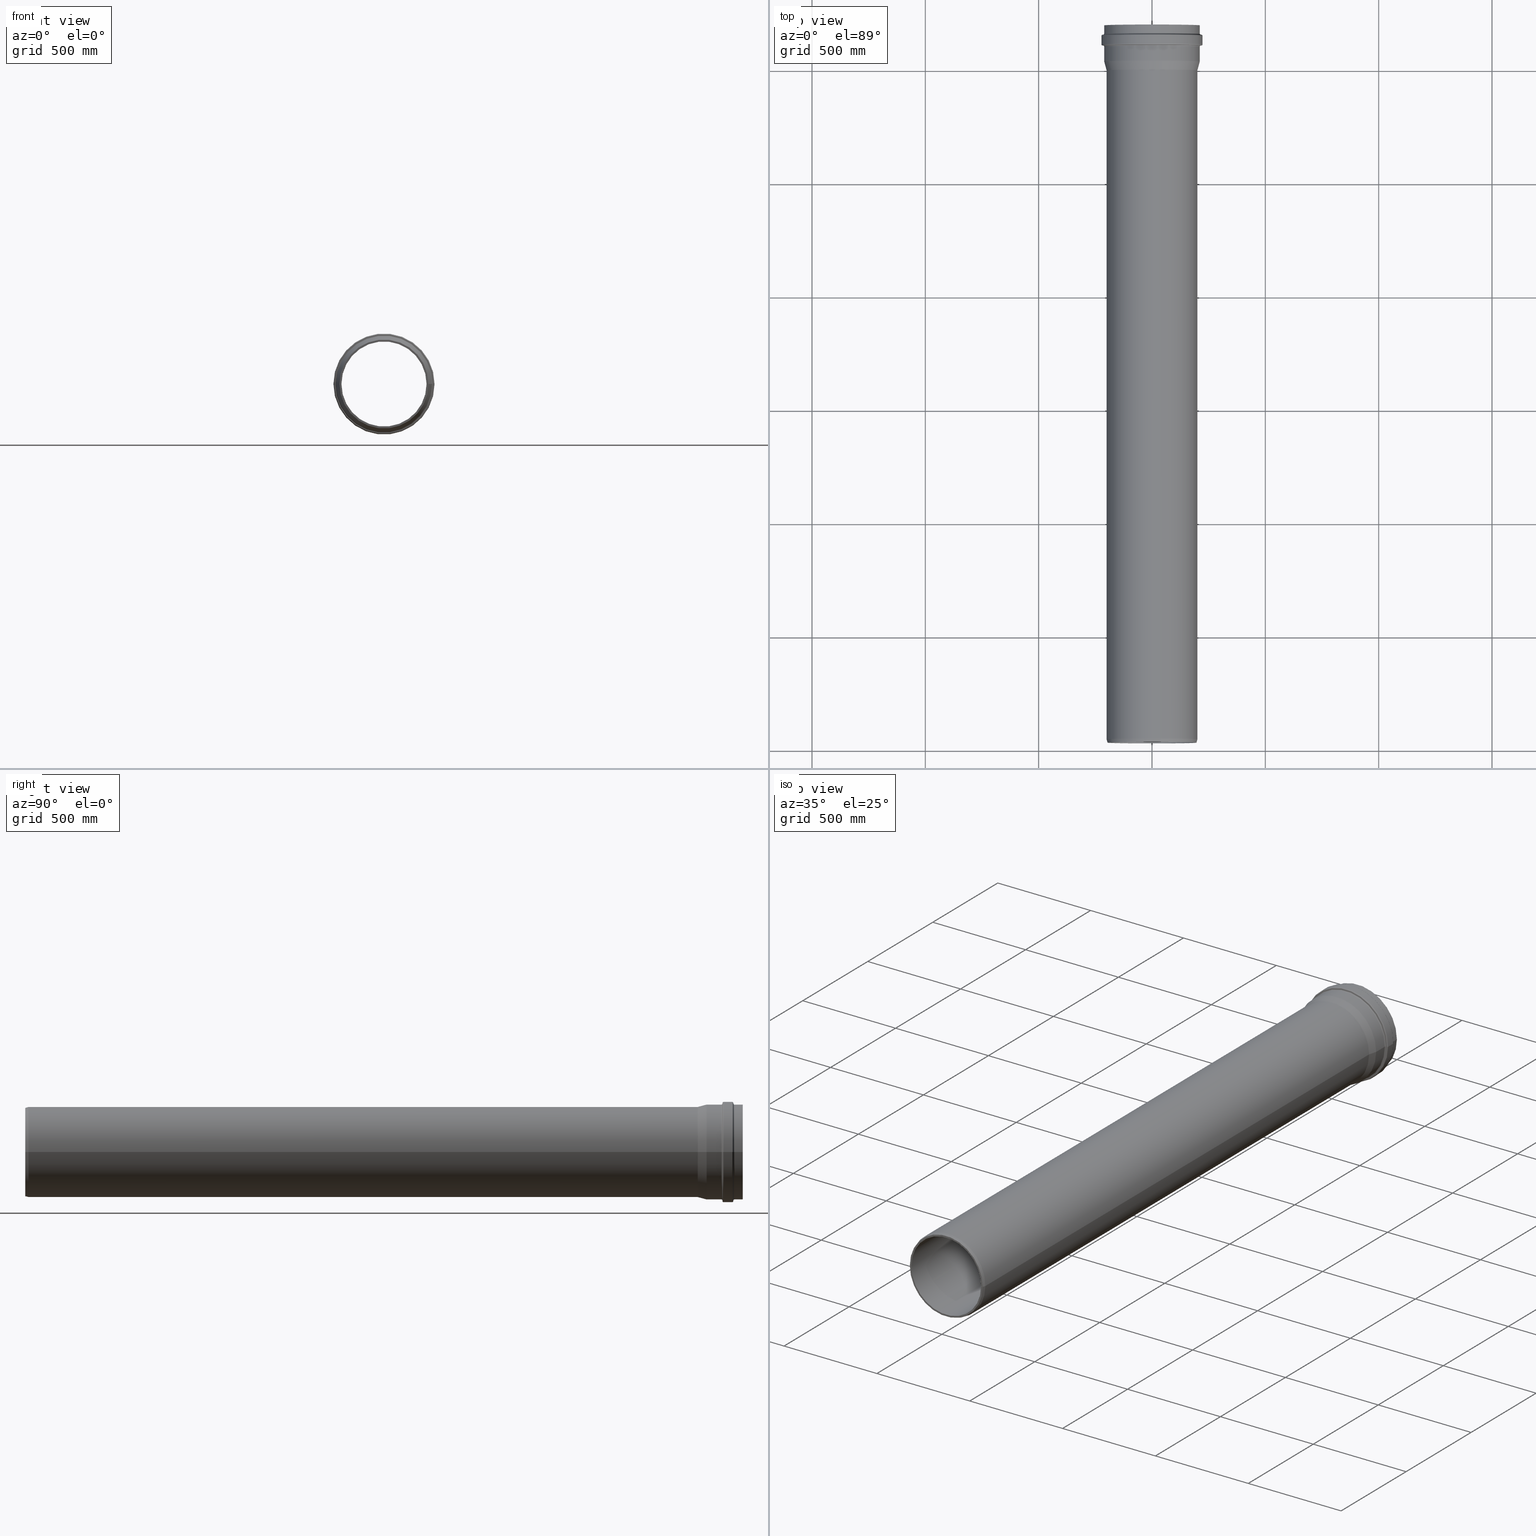
[diagram: canonical four-view strip — front | top / right | iso, engineering-drawing reading convention]
A machine part, canonical four-view strip (front | top / right | iso — engineering-drawing reading convention). The complete STEP part file that produces these views, byte-faithful:
ISO-10303-21;
HEADER;
/* Generated by software containing ST-Developer
 * from STEP Tools, Inc. (www.steptools.com) 
 */

FILE_DESCRIPTION(
/* description */ (''),
/* implementation_level */ '2;1');

FILE_NAME(
/* name */ 
'Y:\\ACad-Dateien\\Ostendorf\\KG PVC\\Kundenzeichnung\\Standardzeichnu
ngen\\246130 KGEM Passl\X\E4ngen SN 8 DN_OD 400x3000 GRIS.stp',
/* time_stamp */ '2018-09-21T08:52:12+02:00',
/* author */ ('user1'),
/* organization */ (''),
/* preprocessor_version */ 'ST-DEVELOPER v16.1',
/* originating_system */ 'Autodesk Inventor 2016',
/* authorisation */ '');

FILE_SCHEMA (('AUTOMOTIVE_DESIGN { 1 0 10303 214 3 1 1 }'));
ENDSEC;

DATA;
#10=MECHANICAL_DESIGN_GEOMETRIC_PRESENTATION_REPRESENTATION('',(#13),#523);
#11=SHAPE_REPRESENTATION_RELATIONSHIP('SRR','None',#532,#12);
#12=ADVANCED_BREP_SHAPE_REPRESENTATION('',(#14),#522);
#13=STYLED_ITEM('',(#541),#14);
#14=MANIFOLD_SOLID_BREP('Volumenk\X\F6rper1',#290);
#15=PLANE('',#335);
#16=PLANE('',#339);
#17=CYLINDRICAL_SURFACE('',#297,210.7);
#18=CYLINDRICAL_SURFACE('',#304,210.7);
#19=CYLINDRICAL_SURFACE('',#309,214.15);
#20=CYLINDRICAL_SURFACE('',#319,200.8);
#21=CYLINDRICAL_SURFACE('',#323,200.8);
#22=CYLINDRICAL_SURFACE('',#327,222.95);
#23=CYLINDRICAL_SURFACE('',#330,200.175);
#24=CYLINDRICAL_SURFACE('',#337,187.775);
#25=CONICAL_SURFACE('',#295,216.825,85.);
#26=CONICAL_SURFACE('',#302,216.825,83.0000000000001);
#27=CONICAL_SURFACE('',#311,207.475,83.0000000000001);
#28=CONICAL_SURFACE('',#315,207.475,85.);
#29=CONICAL_SURFACE('',#333,198.165381056767,14.9999999999999);
#30=CONICAL_SURFACE('',#340,205.4375,15.);
#31=CONICAL_SURFACE('',#341,194.2875,15.);
#32=FACE_BOUND('',#83,.T.);
#33=FACE_BOUND('',#85,.T.);
#34=FACE_BOUND('',#87,.T.);
#35=FACE_BOUND('',#89,.T.);
#36=FACE_BOUND('',#91,.T.);
#37=FACE_BOUND('',#93,.T.);
#38=FACE_BOUND('',#95,.T.);
#39=FACE_BOUND('',#97,.T.);
#40=FACE_BOUND('',#99,.T.);
#41=FACE_BOUND('',#101,.T.);
#42=FACE_BOUND('',#103,.T.);
#43=FACE_BOUND('',#105,.T.);
#44=FACE_BOUND('',#107,.T.);
#45=FACE_BOUND('',#109,.T.);
#46=FACE_BOUND('',#111,.T.);
#47=FACE_BOUND('',#113,.T.);
#48=FACE_BOUND('',#115,.T.);
#49=FACE_BOUND('',#117,.T.);
#50=FACE_BOUND('',#119,.T.);
#51=FACE_BOUND('',#121,.T.);
#52=FACE_BOUND('',#123,.T.);
#53=FACE_BOUND('',#125,.T.);
#54=FACE_BOUND('',#127,.T.);
#55=FACE_BOUND('',#129,.T.);
#56=FACE_BOUND('',#131,.T.);
#57=FACE_OUTER_BOUND('',#82,.T.);
#58=FACE_OUTER_BOUND('',#84,.T.);
#59=FACE_OUTER_BOUND('',#86,.T.);
#60=FACE_OUTER_BOUND('',#88,.T.);
#61=FACE_OUTER_BOUND('',#90,.T.);
#62=FACE_OUTER_BOUND('',#92,.T.);
#63=FACE_OUTER_BOUND('',#94,.T.);
#64=FACE_OUTER_BOUND('',#96,.T.);
#65=FACE_OUTER_BOUND('',#98,.T.);
#66=FACE_OUTER_BOUND('',#100,.T.);
#67=FACE_OUTER_BOUND('',#102,.T.);
#68=FACE_OUTER_BOUND('',#104,.T.);
#69=FACE_OUTER_BOUND('',#106,.T.);
#70=FACE_OUTER_BOUND('',#108,.T.);
#71=FACE_OUTER_BOUND('',#110,.T.);
#72=FACE_OUTER_BOUND('',#112,.T.);
#73=FACE_OUTER_BOUND('',#114,.T.);
#74=FACE_OUTER_BOUND('',#116,.T.);
#75=FACE_OUTER_BOUND('',#118,.T.);
#76=FACE_OUTER_BOUND('',#120,.T.);
#77=FACE_OUTER_BOUND('',#122,.T.);
#78=FACE_OUTER_BOUND('',#124,.T.);
#79=FACE_OUTER_BOUND('',#126,.T.);
#80=FACE_OUTER_BOUND('',#128,.T.);
#81=FACE_OUTER_BOUND('',#130,.T.);
#82=EDGE_LOOP('',(#207));
#83=EDGE_LOOP('',(#208));
#84=EDGE_LOOP('',(#209));
#85=EDGE_LOOP('',(#210));
#86=EDGE_LOOP('',(#211));
#87=EDGE_LOOP('',(#212));
#88=EDGE_LOOP('',(#213));
#89=EDGE_LOOP('',(#214));
#90=EDGE_LOOP('',(#215));
#91=EDGE_LOOP('',(#216));
#92=EDGE_LOOP('',(#217));
#93=EDGE_LOOP('',(#218));
#94=EDGE_LOOP('',(#219));
#95=EDGE_LOOP('',(#220));
#96=EDGE_LOOP('',(#221));
#97=EDGE_LOOP('',(#222));
#98=EDGE_LOOP('',(#223));
#99=EDGE_LOOP('',(#224));
#100=EDGE_LOOP('',(#225));
#101=EDGE_LOOP('',(#226));
#102=EDGE_LOOP('',(#227));
#103=EDGE_LOOP('',(#228));
#104=EDGE_LOOP('',(#229));
#105=EDGE_LOOP('',(#230));
#106=EDGE_LOOP('',(#231));
#107=EDGE_LOOP('',(#232));
#108=EDGE_LOOP('',(#233));
#109=EDGE_LOOP('',(#234));
#110=EDGE_LOOP('',(#235));
#111=EDGE_LOOP('',(#236));
#112=EDGE_LOOP('',(#237));
#113=EDGE_LOOP('',(#238));
#114=EDGE_LOOP('',(#239));
#115=EDGE_LOOP('',(#240));
#116=EDGE_LOOP('',(#241));
#117=EDGE_LOOP('',(#242));
#118=EDGE_LOOP('',(#243));
#119=EDGE_LOOP('',(#244));
#120=EDGE_LOOP('',(#245));
#121=EDGE_LOOP('',(#246));
#122=EDGE_LOOP('',(#247));
#123=EDGE_LOOP('',(#248));
#124=EDGE_LOOP('',(#249));
#125=EDGE_LOOP('',(#250));
#126=EDGE_LOOP('',(#251));
#127=EDGE_LOOP('',(#252));
#128=EDGE_LOOP('',(#253));
#129=EDGE_LOOP('',(#254));
#130=EDGE_LOOP('',(#255));
#131=EDGE_LOOP('',(#256));
#132=CIRCLE('',#293,215.264221286262);
#133=CIRCLE('',#294,210.7);
#134=CIRCLE('',#296,218.385778713738);
#135=CIRCLE('',#298,210.7);
#136=CIRCLE('',#300,210.7);
#137=CIRCLE('',#301,215.090653282974);
#138=CIRCLE('',#303,218.559346717026);
#139=CIRCLE('',#305,210.7);
#140=CIRCLE('',#307,214.15);
#141=CIRCLE('',#308,209.759346717026);
#142=CIRCLE('',#310,214.15);
#143=CIRCLE('',#312,205.190653282974);
#144=CIRCLE('',#314,209.585778713738);
#145=CIRCLE('',#316,205.364221286262);
#146=CIRCLE('',#318,200.8);
#147=CIRCLE('',#320,200.8);
#148=CIRCLE('',#322,200.8);
#149=CIRCLE('',#324,200.8);
#150=CIRCLE('',#326,222.95);
#151=CIRCLE('',#328,222.95);
#152=CIRCLE('',#331,200.175);
#153=CIRCLE('',#332,200.175000000001);
#154=CIRCLE('',#334,196.155762113534);
#155=CIRCLE('',#336,187.775);
#156=CIRCLE('',#338,187.775);
#157=VERTEX_POINT('',#446);
#158=VERTEX_POINT('',#448);
#159=VERTEX_POINT('',#451);
#160=VERTEX_POINT('',#454);
#161=VERTEX_POINT('',#457);
#162=VERTEX_POINT('',#459);
#163=VERTEX_POINT('',#462);
#164=VERTEX_POINT('',#465);
#165=VERTEX_POINT('',#468);
#166=VERTEX_POINT('',#470);
#167=VERTEX_POINT('',#473);
#168=VERTEX_POINT('',#476);
#169=VERTEX_POINT('',#479);
#170=VERTEX_POINT('',#482);
#171=VERTEX_POINT('',#485);
#172=VERTEX_POINT('',#488);
#173=VERTEX_POINT('',#491);
#174=VERTEX_POINT('',#494);
#175=VERTEX_POINT('',#497);
#176=VERTEX_POINT('',#500);
#177=VERTEX_POINT('',#504);
#178=VERTEX_POINT('',#506);
#179=VERTEX_POINT('',#509);
#180=VERTEX_POINT('',#512);
#181=VERTEX_POINT('',#515);
#182=EDGE_CURVE('',#157,#157,#132,.T.);
#183=EDGE_CURVE('',#158,#158,#133,.T.);
#184=EDGE_CURVE('',#159,#159,#134,.T.);
#185=EDGE_CURVE('',#160,#160,#135,.T.);
#186=EDGE_CURVE('',#161,#161,#136,.T.);
#187=EDGE_CURVE('',#162,#162,#137,.T.);
#188=EDGE_CURVE('',#163,#163,#138,.T.);
#189=EDGE_CURVE('',#164,#164,#139,.T.);
#190=EDGE_CURVE('',#165,#165,#140,.T.);
#191=EDGE_CURVE('',#166,#166,#141,.T.);
#192=EDGE_CURVE('',#167,#167,#142,.T.);
#193=EDGE_CURVE('',#168,#168,#143,.T.);
#194=EDGE_CURVE('',#169,#169,#144,.T.);
#195=EDGE_CURVE('',#170,#170,#145,.T.);
#196=EDGE_CURVE('',#171,#171,#146,.T.);
#197=EDGE_CURVE('',#172,#172,#147,.T.);
#198=EDGE_CURVE('',#173,#173,#148,.T.);
#199=EDGE_CURVE('',#174,#174,#149,.T.);
#200=EDGE_CURVE('',#175,#175,#150,.T.);
#201=EDGE_CURVE('',#176,#176,#151,.T.);
#202=EDGE_CURVE('',#177,#177,#152,.T.);
#203=EDGE_CURVE('',#178,#178,#153,.T.);
#204=EDGE_CURVE('',#179,#179,#154,.T.);
#205=EDGE_CURVE('',#180,#180,#155,.T.);
#206=EDGE_CURVE('',#181,#181,#156,.T.);
#207=ORIENTED_EDGE('',*,*,#182,.T.);
#208=ORIENTED_EDGE('',*,*,#183,.T.);
#209=ORIENTED_EDGE('',*,*,#184,.F.);
#210=ORIENTED_EDGE('',*,*,#182,.F.);
#211=ORIENTED_EDGE('',*,*,#185,.F.);
#212=ORIENTED_EDGE('',*,*,#183,.F.);
#213=ORIENTED_EDGE('',*,*,#186,.T.);
#214=ORIENTED_EDGE('',*,*,#187,.T.);
#215=ORIENTED_EDGE('',*,*,#188,.F.);
#216=ORIENTED_EDGE('',*,*,#187,.F.);
#217=ORIENTED_EDGE('',*,*,#189,.T.);
#218=ORIENTED_EDGE('',*,*,#186,.F.);
#219=ORIENTED_EDGE('',*,*,#190,.T.);
#220=ORIENTED_EDGE('',*,*,#191,.T.);
#221=ORIENTED_EDGE('',*,*,#192,.F.);
#222=ORIENTED_EDGE('',*,*,#190,.F.);
#223=ORIENTED_EDGE('',*,*,#193,.F.);
#224=ORIENTED_EDGE('',*,*,#191,.F.);
#225=ORIENTED_EDGE('',*,*,#194,.T.);
#226=ORIENTED_EDGE('',*,*,#192,.T.);
#227=ORIENTED_EDGE('',*,*,#195,.F.);
#228=ORIENTED_EDGE('',*,*,#194,.F.);
#229=ORIENTED_EDGE('',*,*,#196,.T.);
#230=ORIENTED_EDGE('',*,*,#195,.T.);
#231=ORIENTED_EDGE('',*,*,#197,.T.);
#232=ORIENTED_EDGE('',*,*,#196,.F.);
#233=ORIENTED_EDGE('',*,*,#193,.T.);
#234=ORIENTED_EDGE('',*,*,#198,.T.);
#235=ORIENTED_EDGE('',*,*,#199,.F.);
#236=ORIENTED_EDGE('',*,*,#198,.F.);
#237=ORIENTED_EDGE('',*,*,#200,.T.);
#238=ORIENTED_EDGE('',*,*,#184,.T.);
#239=ORIENTED_EDGE('',*,*,#201,.F.);
#240=ORIENTED_EDGE('',*,*,#200,.F.);
#241=ORIENTED_EDGE('',*,*,#188,.T.);
#242=ORIENTED_EDGE('',*,*,#201,.T.);
#243=ORIENTED_EDGE('',*,*,#202,.T.);
#244=ORIENTED_EDGE('',*,*,#203,.F.);
#245=ORIENTED_EDGE('',*,*,#203,.T.);
#246=ORIENTED_EDGE('',*,*,#204,.F.);
#247=ORIENTED_EDGE('',*,*,#204,.T.);
#248=ORIENTED_EDGE('',*,*,#205,.F.);
#249=ORIENTED_EDGE('',*,*,#205,.T.);
#250=ORIENTED_EDGE('',*,*,#206,.F.);
#251=ORIENTED_EDGE('',*,*,#189,.F.);
#252=ORIENTED_EDGE('',*,*,#199,.T.);
#253=ORIENTED_EDGE('',*,*,#185,.T.);
#254=ORIENTED_EDGE('',*,*,#202,.F.);
#255=ORIENTED_EDGE('',*,*,#206,.T.);
#256=ORIENTED_EDGE('',*,*,#197,.F.);
#257=TOROIDAL_SURFACE('',#292,215.7,5.);
#258=TOROIDAL_SURFACE('',#299,215.7,5.);
#259=TOROIDAL_SURFACE('',#306,209.15,5.);
#260=TOROIDAL_SURFACE('',#313,209.15,5.);
#261=TOROIDAL_SURFACE('',#317,205.8,5.);
#262=TOROIDAL_SURFACE('',#321,205.8,5.);
#263=TOROIDAL_SURFACE('',#325,217.95,5.);
#264=TOROIDAL_SURFACE('',#329,217.95,5.);
#265=ADVANCED_FACE('',(#57,#32),#257,.F.);
#266=ADVANCED_FACE('',(#58,#33),#25,.T.);
#267=ADVANCED_FACE('',(#59,#34),#17,.T.);
#268=ADVANCED_FACE('',(#60,#35),#258,.F.);
#269=ADVANCED_FACE('',(#61,#36),#26,.T.);
#270=ADVANCED_FACE('',(#62,#37),#18,.T.);
#271=ADVANCED_FACE('',(#63,#38),#259,.F.);
#272=ADVANCED_FACE('',(#64,#39),#19,.F.);
#273=ADVANCED_FACE('',(#65,#40),#27,.F.);
#274=ADVANCED_FACE('',(#66,#41),#260,.F.);
#275=ADVANCED_FACE('',(#67,#42),#28,.F.);
#276=ADVANCED_FACE('',(#68,#43),#261,.T.);
#277=ADVANCED_FACE('',(#69,#44),#20,.F.);
#278=ADVANCED_FACE('',(#70,#45),#262,.T.);
#279=ADVANCED_FACE('',(#71,#46),#21,.F.);
#280=ADVANCED_FACE('',(#72,#47),#263,.T.);
#281=ADVANCED_FACE('',(#73,#48),#22,.T.);
#282=ADVANCED_FACE('',(#74,#49),#264,.T.);
#283=ADVANCED_FACE('',(#75,#50),#23,.T.);
#284=ADVANCED_FACE('',(#76,#51),#29,.T.);
#285=ADVANCED_FACE('',(#77,#52),#15,.T.);
#286=ADVANCED_FACE('',(#78,#53),#24,.F.);
#287=ADVANCED_FACE('',(#79,#54),#16,.T.);
#288=ADVANCED_FACE('',(#80,#55),#30,.T.);
#289=ADVANCED_FACE('',(#81,#56),#31,.F.);
#290=CLOSED_SHELL('',(#265,#266,#267,#268,#269,#270,#271,#272,#273,#274,
#275,#276,#277,#278,#279,#280,#281,#282,#283,#284,#285,#286,#287,#288,#289));
#291=AXIS2_PLACEMENT_3D('placement',#444,#342,#343);
#292=AXIS2_PLACEMENT_3D('',#445,#344,#345);
#293=AXIS2_PLACEMENT_3D('',#447,#346,#347);
#294=AXIS2_PLACEMENT_3D('',#449,#348,#349);
#295=AXIS2_PLACEMENT_3D('',#450,#350,#351);
#296=AXIS2_PLACEMENT_3D('',#452,#352,#353);
#297=AXIS2_PLACEMENT_3D('',#453,#354,#355);
#298=AXIS2_PLACEMENT_3D('',#455,#356,#357);
#299=AXIS2_PLACEMENT_3D('',#456,#358,#359);
#300=AXIS2_PLACEMENT_3D('',#458,#360,#361);
#301=AXIS2_PLACEMENT_3D('',#460,#362,#363);
#302=AXIS2_PLACEMENT_3D('',#461,#364,#365);
#303=AXIS2_PLACEMENT_3D('',#463,#366,#367);
#304=AXIS2_PLACEMENT_3D('',#464,#368,#369);
#305=AXIS2_PLACEMENT_3D('',#466,#370,#371);
#306=AXIS2_PLACEMENT_3D('',#467,#372,#373);
#307=AXIS2_PLACEMENT_3D('',#469,#374,#375);
#308=AXIS2_PLACEMENT_3D('',#471,#376,#377);
#309=AXIS2_PLACEMENT_3D('',#472,#378,#379);
#310=AXIS2_PLACEMENT_3D('',#474,#380,#381);
#311=AXIS2_PLACEMENT_3D('',#475,#382,#383);
#312=AXIS2_PLACEMENT_3D('',#477,#384,#385);
#313=AXIS2_PLACEMENT_3D('',#478,#386,#387);
#314=AXIS2_PLACEMENT_3D('',#480,#388,#389);
#315=AXIS2_PLACEMENT_3D('',#481,#390,#391);
#316=AXIS2_PLACEMENT_3D('',#483,#392,#393);
#317=AXIS2_PLACEMENT_3D('',#484,#394,#395);
#318=AXIS2_PLACEMENT_3D('',#486,#396,#397);
#319=AXIS2_PLACEMENT_3D('',#487,#398,#399);
#320=AXIS2_PLACEMENT_3D('',#489,#400,#401);
#321=AXIS2_PLACEMENT_3D('',#490,#402,#403);
#322=AXIS2_PLACEMENT_3D('',#492,#404,#405);
#323=AXIS2_PLACEMENT_3D('',#493,#406,#407);
#324=AXIS2_PLACEMENT_3D('',#495,#408,#409);
#325=AXIS2_PLACEMENT_3D('',#496,#410,#411);
#326=AXIS2_PLACEMENT_3D('',#498,#412,#413);
#327=AXIS2_PLACEMENT_3D('',#499,#414,#415);
#328=AXIS2_PLACEMENT_3D('',#501,#416,#417);
#329=AXIS2_PLACEMENT_3D('',#502,#418,#419);
#330=AXIS2_PLACEMENT_3D('',#503,#420,#421);
#331=AXIS2_PLACEMENT_3D('',#505,#422,#423);
#332=AXIS2_PLACEMENT_3D('',#507,#424,#425);
#333=AXIS2_PLACEMENT_3D('',#508,#426,#427);
#334=AXIS2_PLACEMENT_3D('',#510,#428,#429);
#335=AXIS2_PLACEMENT_3D('',#511,#430,#431);
#336=AXIS2_PLACEMENT_3D('',#513,#432,#433);
#337=AXIS2_PLACEMENT_3D('',#514,#434,#435);
#338=AXIS2_PLACEMENT_3D('',#516,#436,#437);
#339=AXIS2_PLACEMENT_3D('',#517,#438,#439);
#340=AXIS2_PLACEMENT_3D('',#518,#440,#441);
#341=AXIS2_PLACEMENT_3D('',#519,#442,#443);
#342=DIRECTION('axis',(0.,0.,1.));
#343=DIRECTION('refdir',(1.,0.,0.));
#344=DIRECTION('center_axis',(0.,-1.,0.));
#345=DIRECTION('ref_axis',(0.,0.,-1.));
#346=DIRECTION('center_axis',(0.,-1.,0.));
#347=DIRECTION('ref_axis',(-1.,0.,0.));
#348=DIRECTION('center_axis',(0.,1.,0.));
#349=DIRECTION('ref_axis',(-1.,0.,1.22464679914735E-16));
#350=DIRECTION('center_axis',(0.,1.,0.));
#351=DIRECTION('ref_axis',(1.,0.,0.));
#352=DIRECTION('center_axis',(0.,1.,0.));
#353=DIRECTION('ref_axis',(-1.,0.,0.));
#354=DIRECTION('center_axis',(0.,-1.,0.));
#355=DIRECTION('ref_axis',(1.,0.,0.));
#356=DIRECTION('center_axis',(0.,-1.,0.));
#357=DIRECTION('ref_axis',(1.,0.,0.));
#358=DIRECTION('center_axis',(0.,-1.,0.));
#359=DIRECTION('ref_axis',(0.,0.,-1.));
#360=DIRECTION('center_axis',(0.,-1.,0.));
#361=DIRECTION('ref_axis',(-1.,0.,1.22464679914735E-16));
#362=DIRECTION('center_axis',(0.,1.,0.));
#363=DIRECTION('ref_axis',(-1.,0.,1.83378704090685E-32));
#364=DIRECTION('center_axis',(0.,-1.,0.));
#365=DIRECTION('ref_axis',(1.,0.,0.));
#366=DIRECTION('center_axis',(0.,-1.,0.));
#367=DIRECTION('ref_axis',(-1.,0.,0.));
#368=DIRECTION('center_axis',(0.,-1.,0.));
#369=DIRECTION('ref_axis',(1.,0.,0.));
#370=DIRECTION('center_axis',(0.,-1.,0.));
#371=DIRECTION('ref_axis',(1.,0.,0.));
#372=DIRECTION('center_axis',(0.,-1.,0.));
#373=DIRECTION('ref_axis',(0.,0.,-1.));
#374=DIRECTION('center_axis',(0.,-1.,0.));
#375=DIRECTION('ref_axis',(-1.,0.,1.22464679914735E-16));
#376=DIRECTION('center_axis',(0.,1.,0.));
#377=DIRECTION('ref_axis',(-1.,0.,0.));
#378=DIRECTION('center_axis',(0.,-1.,0.));
#379=DIRECTION('ref_axis',(1.,0.,0.));
#380=DIRECTION('center_axis',(0.,1.,0.));
#381=DIRECTION('ref_axis',(-1.,0.,1.22464679914735E-16));
#382=DIRECTION('center_axis',(0.,-1.,0.));
#383=DIRECTION('ref_axis',(1.,0.,0.));
#384=DIRECTION('center_axis',(0.,-1.,0.));
#385=DIRECTION('ref_axis',(-1.,0.,0.));
#386=DIRECTION('center_axis',(0.,-1.,0.));
#387=DIRECTION('ref_axis',(0.,0.,-1.));
#388=DIRECTION('center_axis',(0.,-1.,0.));
#389=DIRECTION('ref_axis',(-1.,0.,0.));
#390=DIRECTION('center_axis',(0.,1.,0.));
#391=DIRECTION('ref_axis',(1.,0.,0.));
#392=DIRECTION('center_axis',(0.,1.,0.));
#393=DIRECTION('ref_axis',(-1.,0.,0.));
#394=DIRECTION('center_axis',(0.,-1.,0.));
#395=DIRECTION('ref_axis',(0.,0.,-1.));
#396=DIRECTION('center_axis',(0.,-1.,0.));
#397=DIRECTION('ref_axis',(-1.,0.,1.22464679914735E-16));
#398=DIRECTION('center_axis',(0.,-1.,0.));
#399=DIRECTION('ref_axis',(1.,0.,0.));
#400=DIRECTION('center_axis',(0.,-1.,0.));
#401=DIRECTION('ref_axis',(1.,0.,0.));
#402=DIRECTION('center_axis',(0.,-1.,0.));
#403=DIRECTION('ref_axis',(0.,0.,-1.));
#404=DIRECTION('center_axis',(0.,1.,0.));
#405=DIRECTION('ref_axis',(-1.,0.,1.22464679914735E-16));
#406=DIRECTION('center_axis',(0.,-1.,0.));
#407=DIRECTION('ref_axis',(1.,0.,0.));
#408=DIRECTION('center_axis',(0.,-1.,0.));
#409=DIRECTION('ref_axis',(1.,0.,0.));
#410=DIRECTION('center_axis',(0.,-1.,0.));
#411=DIRECTION('ref_axis',(0.,0.,-1.));
#412=DIRECTION('center_axis',(0.,-1.,0.));
#413=DIRECTION('ref_axis',(-1.,0.,1.22464679914735E-16));
#414=DIRECTION('center_axis',(0.,-1.,0.));
#415=DIRECTION('ref_axis',(1.,0.,0.));
#416=DIRECTION('center_axis',(0.,1.,0.));
#417=DIRECTION('ref_axis',(-1.,0.,1.22464679914735E-16));
#418=DIRECTION('center_axis',(0.,-1.,0.));
#419=DIRECTION('ref_axis',(0.,0.,-1.));
#420=DIRECTION('center_axis',(0.,-1.,0.));
#421=DIRECTION('ref_axis',(1.,0.,0.));
#422=DIRECTION('center_axis',(0.,-1.,0.));
#423=DIRECTION('ref_axis',(1.,0.,0.));
#424=DIRECTION('center_axis',(0.,-1.,0.));
#425=DIRECTION('ref_axis',(1.,0.,0.));
#426=DIRECTION('center_axis',(0.,1.,0.));
#427=DIRECTION('ref_axis',(1.,0.,0.));
#428=DIRECTION('center_axis',(0.,-1.,0.));
#429=DIRECTION('ref_axis',(1.,0.,0.));
#430=DIRECTION('center_axis',(0.,-1.,0.));
#431=DIRECTION('ref_axis',(0.,0.,-1.));
#432=DIRECTION('center_axis',(0.,-1.,0.));
#433=DIRECTION('ref_axis',(1.,0.,0.));
#434=DIRECTION('center_axis',(0.,-1.,0.));
#435=DIRECTION('ref_axis',(1.,0.,0.));
#436=DIRECTION('center_axis',(0.,-1.,0.));
#437=DIRECTION('ref_axis',(1.,0.,0.));
#438=DIRECTION('center_axis',(0.,1.,0.));
#439=DIRECTION('ref_axis',(0.,0.,1.));
#440=DIRECTION('center_axis',(0.,1.,0.));
#441=DIRECTION('ref_axis',(1.,0.,0.));
#442=DIRECTION('center_axis',(0.,1.,0.));
#443=DIRECTION('ref_axis',(1.,0.,0.));
#444=CARTESIAN_POINT('',(0.,0.,0.));
#445=CARTESIAN_POINT('Origin',(0.,104.372640446689,0.));
#446=CARTESIAN_POINT('',(215.264221286262,109.353613937148,0.));
#447=CARTESIAN_POINT('Origin',(0.,109.353613937148,-2.63622639569168E-14));
#448=CARTESIAN_POINT('',(210.7,104.372640446689,-5.16066161160695E-14));
#449=CARTESIAN_POINT('Origin',(0.,104.372640446689,0.));
#450=CARTESIAN_POINT('Origin',(0.,109.490164380873,0.));
#451=CARTESIAN_POINT('',(218.385778713738,109.626714824598,-5.34890889762164E-14));
#452=CARTESIAN_POINT('Origin',(0.,109.626714824598,-2.67445444881082E-14));
#453=CARTESIAN_POINT('Origin',(0.,74.1170655332195,0.));
#454=CARTESIAN_POINT('',(210.7,39.2798347496625,0.));
#455=CARTESIAN_POINT('Origin',(0.,39.2798347496625,0.));
#456=CARTESIAN_POINT('Origin',(0.,162.365528927557,0.));
#457=CARTESIAN_POINT('',(210.7,162.365528927557,0.));
#458=CARTESIAN_POINT('Origin',(0.,162.365528927557,0.));
#459=CARTESIAN_POINT('',(215.090653282974,157.402798169351,-5.26820160139015E-14));
#460=CARTESIAN_POINT('Origin',(0.,157.402798169351,-2.63410080069508E-14));
#461=CARTESIAN_POINT('Origin',(0.,157.189847169247,0.));
#462=CARTESIAN_POINT('',(218.559346717026,156.976896169144,0.));
#463=CARTESIAN_POINT('Origin',(0.,156.976896169144,-2.67658004380742E-14));
#464=CARTESIAN_POINT('Origin',(0.,178.275932186681,0.));
#465=CARTESIAN_POINT('',(210.7,198.609961768585,0.));
#466=CARTESIAN_POINT('Origin',(0.,198.609961768585,0.));
#467=CARTESIAN_POINT('Origin',(0.,143.12032227484,0.));
#468=CARTESIAN_POINT('',(214.15,143.12032227484,0.));
#469=CARTESIAN_POINT('Origin',(0.,143.12032227484,0.));
#470=CARTESIAN_POINT('',(209.759346717026,148.083053033047,-5.13762225096491E-14));
#471=CARTESIAN_POINT('Origin',(0.,148.083053033047,-2.56881112548245E-14));
#472=CARTESIAN_POINT('Origin',(0.,133.36894859762,0.));
#473=CARTESIAN_POINT('',(214.15,123.775604467707,-5.24516224074811E-14));
#474=CARTESIAN_POINT('Origin',(0.,123.775604467707,0.));
#475=CARTESIAN_POINT('Origin',(0.,148.363535541647,0.));
#476=CARTESIAN_POINT('',(205.190653282974,148.644018050247,3.94430452610506E-30));
#477=CARTESIAN_POINT('Origin',(0.,148.644018050247,-2.51286076757949E-14));
#478=CARTESIAN_POINT('Origin',(0.,123.775604467707,0.));
#479=CARTESIAN_POINT('',(209.585778713738,118.794630977249,3.94430452610506E-30));
#480=CARTESIAN_POINT('Origin',(0.,118.794630977249,-2.56668553048585E-14));
#481=CARTESIAN_POINT('Origin',(0.,118.609961768585,0.));
#482=CARTESIAN_POINT('',(205.364221286262,118.425292559921,-5.02997272515218E-14));
#483=CARTESIAN_POINT('Origin',(0.,118.425292559921,-2.51498636257609E-14));
#484=CARTESIAN_POINT('Origin',(0.,113.444319069462,0.));
#485=CARTESIAN_POINT('',(200.8,113.444319069462,0.));
#486=CARTESIAN_POINT('Origin',(0.,113.444319069462,0.));
#487=CARTESIAN_POINT('Origin',(0.,83.3179683540668,0.));
#488=CARTESIAN_POINT('',(200.8,48.6099617685846,0.));
#489=CARTESIAN_POINT('Origin',(0.,48.6099617685846,0.));
#490=CARTESIAN_POINT('Origin',(0.,153.606748808454,0.));
#491=CARTESIAN_POINT('',(200.8,153.606748808454,-4.91818154537577E-14));
#492=CARTESIAN_POINT('Origin',(0.,153.606748808454,0.));
#493=CARTESIAN_POINT('Origin',(0.,173.896542127129,0.));
#494=CARTESIAN_POINT('',(200.8,198.609961768585,0.));
#495=CARTESIAN_POINT('Origin',(0.,198.609961768585,0.));
#496=CARTESIAN_POINT('Origin',(0.,114.607688315056,0.));
#497=CARTESIAN_POINT('',(222.95,114.607688315056,0.));
#498=CARTESIAN_POINT('Origin',(0.,114.607688315056,0.));
#499=CARTESIAN_POINT('Origin',(0.,133.231912089343,0.));
#500=CARTESIAN_POINT('',(222.95,152.014165410937,-5.46070007739805E-14));
#501=CARTESIAN_POINT('Origin',(0.,152.014165410937,0.));
#502=CARTESIAN_POINT('Origin',(0.,152.014165410937,0.));
#503=CARTESIAN_POINT('Origin',(0.,-1475.69501911571,0.));
#504=CARTESIAN_POINT('',(200.175,1.00421037530083E-15,0.));
#505=CARTESIAN_POINT('Origin',(0.,0.,0.));
#506=CARTESIAN_POINT('',(200.175000000001,-2951.39003823142,0.));
#507=CARTESIAN_POINT('Origin',(0.,-2951.39003823142,0.));
#508=CARTESIAN_POINT('Origin',(0.,-2958.89003823142,0.));
#509=CARTESIAN_POINT('',(196.155762113534,-2966.39003823142,0.));
#510=CARTESIAN_POINT('Origin',(0.,-2966.39003823142,0.));
#511=CARTESIAN_POINT('Origin',(187.775,-2966.39003823142,0.));
#512=CARTESIAN_POINT('',(187.775,-2966.39003823142,0.));
#513=CARTESIAN_POINT('Origin',(0.,-2966.39003823142,0.));
#514=CARTESIAN_POINT('Origin',(0.,-1483.19501911571,0.));
#515=CARTESIAN_POINT('',(187.775,-2.69422295812417E-16,0.));
#516=CARTESIAN_POINT('Origin',(0.,0.,0.));
#517=CARTESIAN_POINT('Origin',(210.7,198.609961768585,0.));
#518=CARTESIAN_POINT('Origin',(0.,19.6399173748312,0.));
#519=CARTESIAN_POINT('Origin',(0.,24.3049808842923,0.));
#520=UNCERTAINTY_MEASURE_WITH_UNIT(LENGTH_MEASURE(0.01),#524,
'DISTANCE_ACCURACY_VALUE',
'Maximum model space distance between geometric entities at asserted c
onnectivities');
#521=UNCERTAINTY_MEASURE_WITH_UNIT(LENGTH_MEASURE(1.E-6),#524,
'DISTANCE_ACCURACY_VALUE',
'Maximum model space distance between geometric entities at asserted c
onnectivities');
#522=(
GEOMETRIC_REPRESENTATION_CONTEXT(3)
GLOBAL_UNCERTAINTY_ASSIGNED_CONTEXT((#520))
GLOBAL_UNIT_ASSIGNED_CONTEXT((#524,#527,#525))
REPRESENTATION_CONTEXT('','3D')
);
#523=(
GEOMETRIC_REPRESENTATION_CONTEXT(3)
GLOBAL_UNCERTAINTY_ASSIGNED_CONTEXT((#521))
GLOBAL_UNIT_ASSIGNED_CONTEXT((#524,#527,#525))
REPRESENTATION_CONTEXT('','3D')
);
#524=(
LENGTH_UNIT()
NAMED_UNIT(*)
SI_UNIT(.MILLI.,.METRE.)
);
#525=(
NAMED_UNIT(*)
SI_UNIT($,.STERADIAN.)
SOLID_ANGLE_UNIT()
);
#526=DIMENSIONAL_EXPONENTS(0.,0.,0.,0.,0.,0.,0.);
#527=(
CONVERSION_BASED_UNIT('degree',#529)
NAMED_UNIT(#526)
PLANE_ANGLE_UNIT()
);
#528=(
NAMED_UNIT(*)
PLANE_ANGLE_UNIT()
SI_UNIT($,.RADIAN.)
);
#529=PLANE_ANGLE_MEASURE_WITH_UNIT(PLANE_ANGLE_MEASURE(0.01745329252),#528);
#530=SHAPE_DEFINITION_REPRESENTATION(#531,#532);
#531=PRODUCT_DEFINITION_SHAPE('',$,#534);
#532=SHAPE_REPRESENTATION('',(#291),#522);
#533=PRODUCT_DEFINITION_CONTEXT('part definition',#538,'design');
#534=PRODUCT_DEFINITION(
'246130 KGEM Passl\X\E4ngen SN 8 DN_OD 400x3000 GRIS',
'246130 KGEM Passl\X\E4ngen SN 8 DN_OD 400x3000 GRIS',#535,#533);
#535=PRODUCT_DEFINITION_FORMATION('',$,#540);
#536=PRODUCT_RELATED_PRODUCT_CATEGORY(
'246130 KGEM Passl\X\E4ngen SN 8 DN_OD 400x3000 GRIS',
'246130 KGEM Passl\X\E4ngen SN 8 DN_OD 400x3000 GRIS',(#540));
#537=APPLICATION_PROTOCOL_DEFINITION('international standard',
'automotive_design',2009,#538);
#538=APPLICATION_CONTEXT(
'Core Data for Automotive Mechanical Design Process');
#539=PRODUCT_CONTEXT('part definition',#538,'mechanical');
#540=PRODUCT('246130 KGEM Passl\X\E4ngen SN 8 DN_OD 400x3000 GRIS',
'246130 KGEM Passl\X\E4ngen SN 8 DN_OD 400x3000 GRIS',$,(#539));
#541=PRESENTATION_STYLE_ASSIGNMENT((#542));
#542=SURFACE_STYLE_USAGE(.BOTH.,#543);
#543=SURFACE_SIDE_STYLE('',(#544));
#544=SURFACE_STYLE_FILL_AREA(#545);
#545=FILL_AREA_STYLE('',(#546));
#546=FILL_AREA_STYLE_COLOUR('',#547);
#547=COLOUR_RGB('',0.749019607843137,0.749019607843137,0.749019607843137);
ENDSEC;
END-ISO-10303-21;
